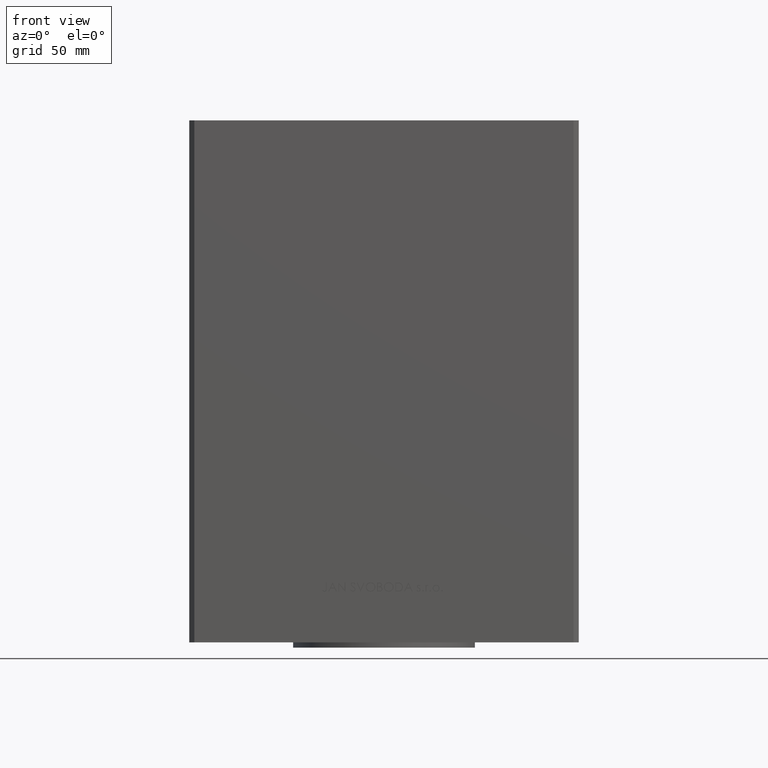
[diagram: clean part render]
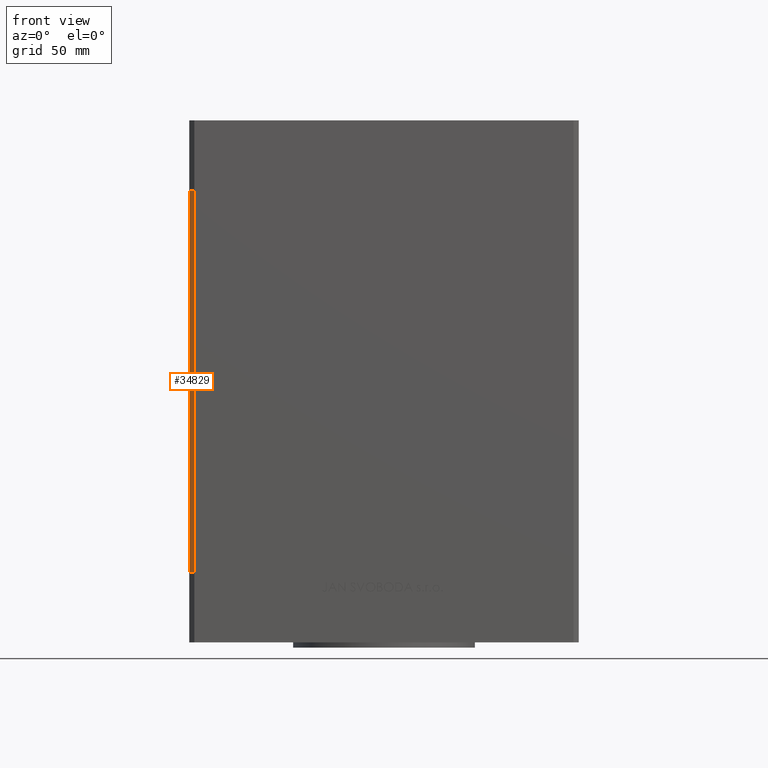
[diagram: same view with one face highlighted and labeled with its STEP entity id]
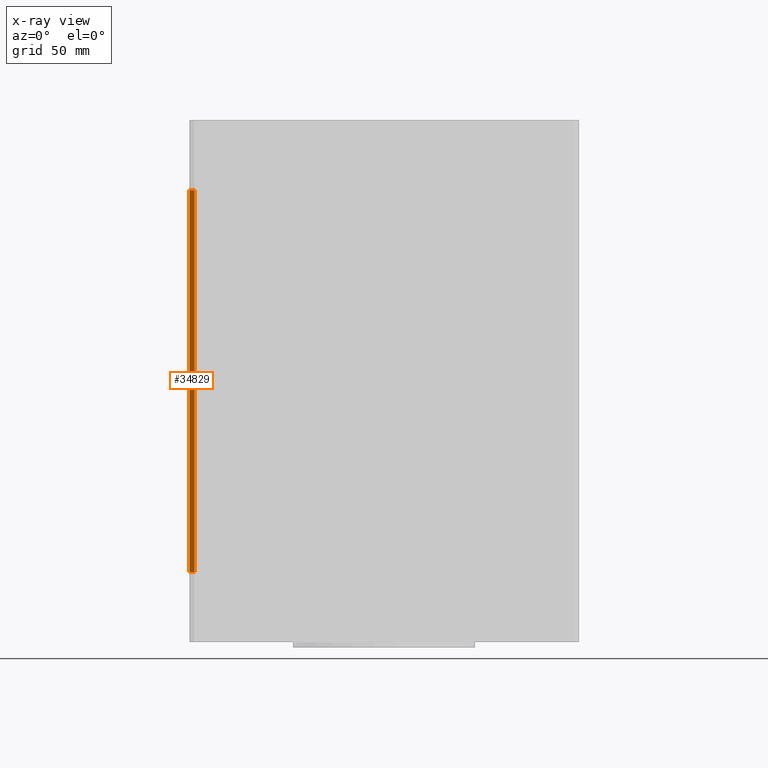
[diagram: x-ray of the same camera — body ghosted, the highlighted face saturated]
A machine part, front view. The second image highlights one B-rep face of the part: STEP entity #34829.
The next image is the same camera in x-ray: the body ghosted, the highlighted face saturated — about 0% of this face is hidden behind the body in this view.
In plain terms, the highlighted planar face has unit normal (0.7071, 0.7071, 0).
Its self-contained STEP definition (entity closure, byte-faithful):
#85 = CARTESIAN_POINT ( 'NONE',  ( -72.99999999999998579, -62.50000000000000000, 147.0000000000000000 ) ) ;
#1309 = VECTOR ( 'NONE', #40685, 1000.000000000000000 ) ;
#3752 = ORIENTED_EDGE ( 'NONE', *, *, #25118, .F. ) ;
#5292 = VECTOR ( 'NONE', #37045, 1000.000000000000114 ) ;
#7307 = DIRECTION ( 'NONE',  ( 0.7071067811865474617, -0.7071067811865474617, 0.000000000000000000 ) ) ;
#7367 = LINE ( 'NONE', #41237, #5292 ) ;
#9390 = EDGE_CURVE ( 'NONE', #31885, #26850, #17919, .T. ) ;
#11227 = DIRECTION ( 'NONE',  ( -0.000000000000000000, -0.000000000000000000, -1.000000000000000000 ) ) ;
#11451 = VECTOR ( 'NONE', #11227, 1000.000000000000000 ) ;
#11835 = VERTEX_POINT ( 'NONE', #37526 ) ;
#11989 = FACE_OUTER_BOUND ( 'NONE', #47299, .T. ) ;
#14923 = CARTESIAN_POINT ( 'NONE',  ( -74.99999999999998579, -60.50000000000000000, 147.0000000000000000 ) ) ;
#14949 = CARTESIAN_POINT ( 'NONE',  ( -72.99999999999998579, -62.50000000000000000, 147.0000000000000000 ) ) ;
#16741 = CARTESIAN_POINT ( 'NONE',  ( -74.99999999999998579, -60.50000000000000000, 147.0000000000000000 ) ) ;
#17919 = LINE ( 'NONE', #21633, #46796 ) ;
#18864 = AXIS2_PLACEMENT_3D ( 'NONE', #23593, #38705, #19887 ) ;
#19842 = EDGE_CURVE ( 'NONE', #31885, #24187, #33988, .T. ) ;
#19887 = DIRECTION ( 'NONE',  ( -0.7071067811865474617, 0.7071067811865474617, 0.000000000000000000 ) ) ;
#21633 = CARTESIAN_POINT ( 'NONE',  ( -74.99999999999998579, -60.50000000000000000, 147.0000000000000000 ) ) ;
#23593 = CARTESIAN_POINT ( 'NONE',  ( -74.99999999999998579, -60.50000000000000000, 147.0000000000000000 ) ) ;
#24187 = VERTEX_POINT ( 'NONE', #39344 ) ;
#25118 = EDGE_CURVE ( 'NONE', #26850, #11835, #40932, .T. ) ;
#25758 = EDGE_CURVE ( 'NONE', #24187, #11835, #7367, .T. ) ;
#26850 = VERTEX_POINT ( 'NONE', #85 ) ;
#31885 = VERTEX_POINT ( 'NONE', #16741 ) ;
#33988 = LINE ( 'NONE', #14923, #11451 ) ;
#34829 = ADVANCED_FACE ( 'NONE', ( #11989 ), #43133, .F. ) ;
#37045 = DIRECTION ( 'NONE',  ( 0.7071067811865474617, -0.7071067811865474617, 0.000000000000000000 ) ) ;
#37526 = CARTESIAN_POINT ( 'NONE',  ( -72.99999999999998579, -62.50000000000000000, 0.000000000000000000 ) ) ;
#38705 = DIRECTION ( 'NONE',  ( 0.7071067811865475727, 0.7071067811865475727, -0.000000000000000000 ) ) ;
#39344 = CARTESIAN_POINT ( 'NONE',  ( -74.99999999999998579, -60.50000000000000000, 0.000000000000000000 ) ) ;
#40062 = ORIENTED_EDGE ( 'NONE', *, *, #19842, .T. ) ;
#40675 = ORIENTED_EDGE ( 'NONE', *, *, #25758, .T. ) ;
#40685 = DIRECTION ( 'NONE',  ( -0.000000000000000000, -0.000000000000000000, -1.000000000000000000 ) ) ;
#40932 = LINE ( 'NONE', #14949, #1309 ) ;
#41237 = CARTESIAN_POINT ( 'NONE',  ( -74.99999999999998579, -60.50000000000000000, 0.000000000000000000 ) ) ;
#43133 = PLANE ( 'NONE',  #18864 ) ;
#43892 = ORIENTED_EDGE ( 'NONE', *, *, #9390, .F. ) ;
#46796 = VECTOR ( 'NONE', #7307, 1000.000000000000114 ) ;
#47299 = EDGE_LOOP ( 'NONE', ( #40675, #3752, #43892, #40062 ) ) ;